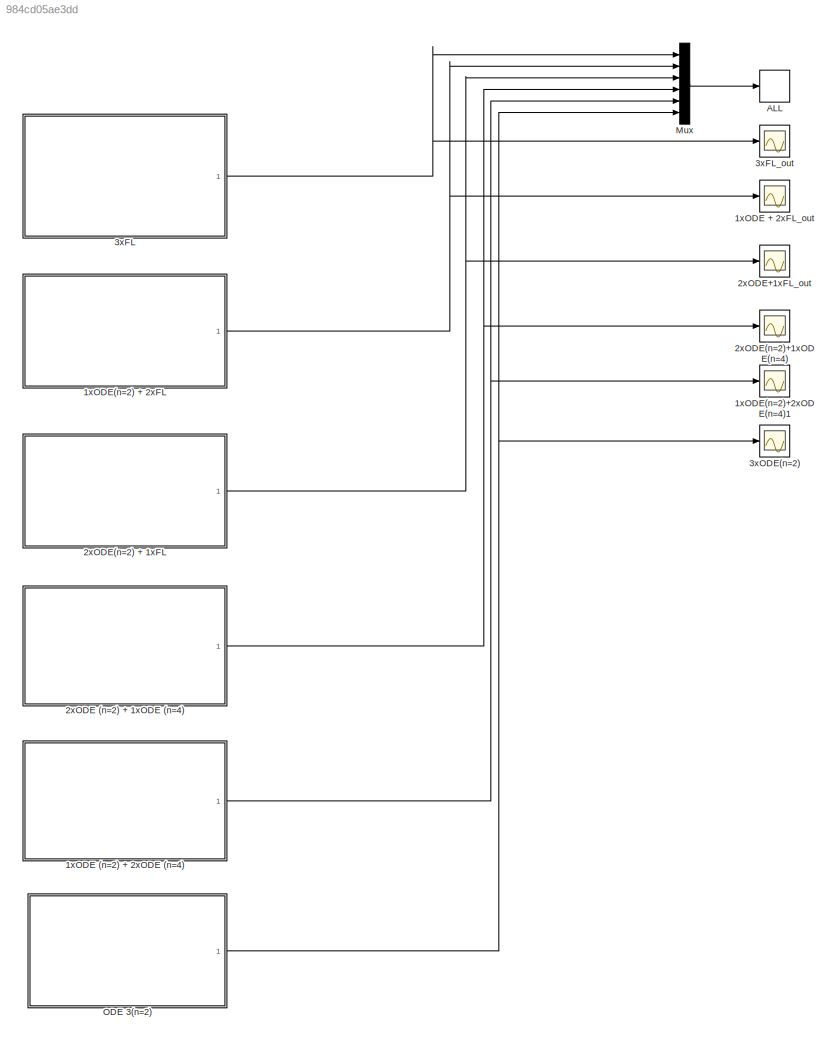
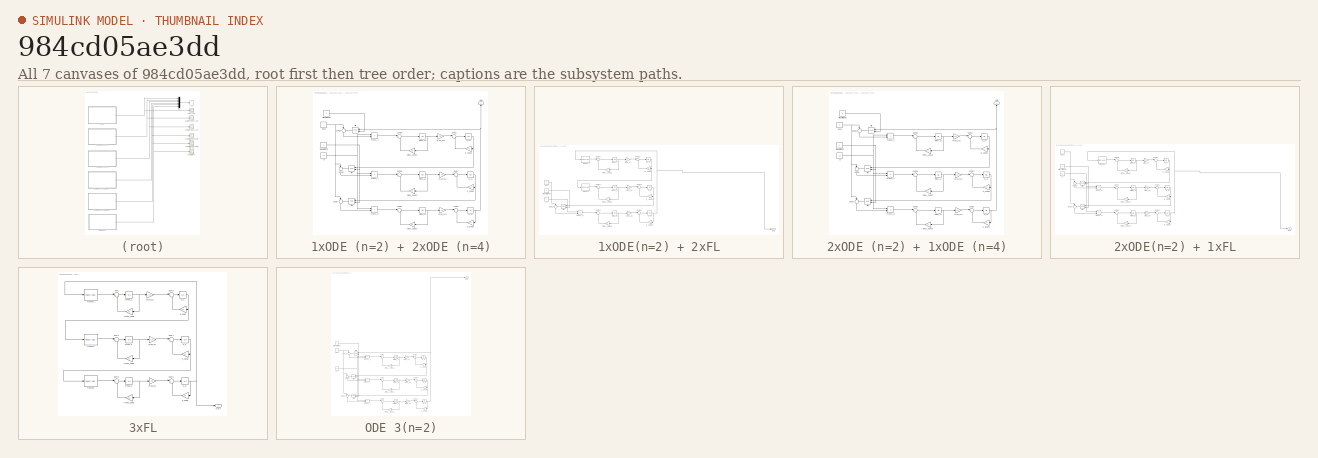
[diagram: thumbnail index - all 7 canvases of the model, root first then tree order]
MODEL slx_984cd05ae3dd
KIND model
CONFIG AbsTol = auto
CONFIG FixedStep = 0.1
CONFIG MaxStep = auto
CONFIG MinStep = auto
CONFIG RelTol = 1e-3
CONFIG SampleTimeConstraint = Unconstrained
CONFIG Solver = ode4
CONFIG SolverMode = Auto
CONFIG SolverName = ode4
CONFIG StartTime = 0.0
CONFIG StopTime = 1500
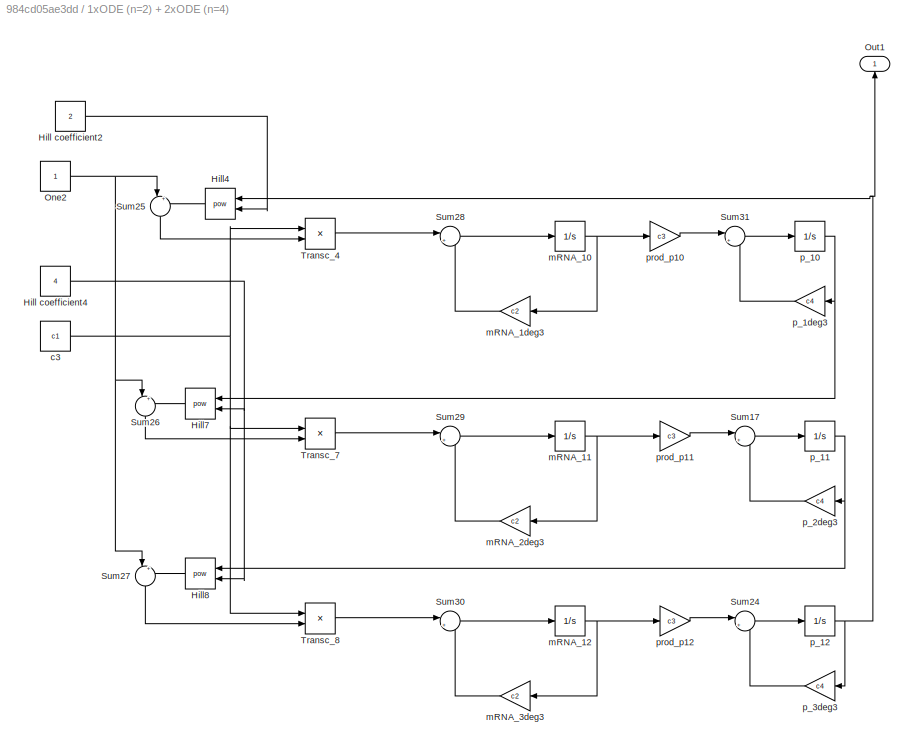
BLOCK [SubSystem] 1xODE (n=2) + 2xODE (n=4)
  Ports = [0, 1]
  RequestExecContextInheritance = off
BLOCK [Constant] 1xODE (n=2) + 2xODE (n=4)/Hill coefficient2
  Value = 2
BLOCK [Constant] 1xODE (n=2) + 2xODE (n=4)/Hill coefficient4
  Value = 4
BLOCK [Math] 1xODE (n=2) + 2xODE (n=4)/Hill4
  Operator = pow
  Ports = [2, 1]
BLOCK [Math] 1xODE (n=2) + 2xODE (n=4)/Hill7
  Operator = pow
  Ports = [2, 1]
BLOCK [Math] 1xODE (n=2) + 2xODE (n=4)/Hill8
  Operator = pow
  Ports = [2, 1]
BLOCK [Constant] 1xODE (n=2) + 2xODE (n=4)/One2
BLOCK [Outport] 1xODE (n=2) + 2xODE (n=4)/Out1
  IconDisplay = Port number
BLOCK [Sum] 1xODE (n=2) + 2xODE (n=4)/Sum17
  IconShape = round
  InputSameDT = off
  Inputs = |+-
  OutDataTypeStr = Inherit: Inherit via internal rule
  Ports = [2, 1]
  SaturateOnIntegerOverflow = off
BLOCK [Sum] 1xODE (n=2) + 2xODE (n=4)/Sum24
  IconShape = round
  InputSameDT = off
  Inputs = |+-
  OutDataTypeStr = Inherit: Inherit via internal rule
  Ports = [2, 1]
  SaturateOnIntegerOverflow = off
BLOCK [Sum] 1xODE (n=2) + 2xODE (n=4)/Sum25
  IconShape = round
  InputSameDT = off
  Inputs = |++
  OutDataTypeStr = Inherit: Inherit via internal rule
  Ports = [2, 1]
  SaturateOnIntegerOverflow = off
BLOCK [Sum] 1xODE (n=2) + 2xODE (n=4)/Sum26
  IconShape = round
  InputSameDT = off
  Inputs = |++
  OutDataTypeStr = Inherit: Inherit via internal rule
  Ports = [2, 1]
  SaturateOnIntegerOverflow = off
BLOCK [Sum] 1xODE (n=2) + 2xODE (n=4)/Sum27
  IconShape = round
  InputSameDT = off
  Inputs = |++
  OutDataTypeStr = Inherit: Inherit via internal rule
  Ports = [2, 1]
  SaturateOnIntegerOverflow = off
BLOCK [Sum] 1xODE (n=2) + 2xODE (n=4)/Sum28
  IconShape = round
  InputSameDT = off
  Inputs = |+-
  OutDataTypeStr = Inherit: Inherit via internal rule
  Ports = [2, 1]
  SaturateOnIntegerOverflow = off
BLOCK [Sum] 1xODE (n=2) + 2xODE (n=4)/Sum29
  IconShape = round
  InputSameDT = off
  Inputs = |+-
  OutDataTypeStr = Inherit: Inherit via internal rule
  Ports = [2, 1]
  SaturateOnIntegerOverflow = off
BLOCK [Sum] 1xODE (n=2) + 2xODE (n=4)/Sum30
  IconShape = round
  InputSameDT = off
  Inputs = |+-
  OutDataTypeStr = Inherit: Inherit via internal rule
  Ports = [2, 1]
  SaturateOnIntegerOverflow = off
BLOCK [Sum] 1xODE (n=2) + 2xODE (n=4)/Sum31
  IconShape = round
  InputSameDT = off
  Inputs = |+-
  OutDataTypeStr = Inherit: Inherit via internal rule
  Ports = [2, 1]
  SaturateOnIntegerOverflow = off
BLOCK [Product] 1xODE (n=2) + 2xODE (n=4)/Transc_4
  InputSameDT = off
  Inputs = */
  OutDataTypeStr = Inherit: Inherit via internal rule
  Ports = [2, 1]
  RndMeth = Floor
  SaturateOnIntegerOverflow = off
BLOCK [Product] 1xODE (n=2) + 2xODE (n=4)/Transc_7
  InputSameDT = off
  Inputs = */
  OutDataTypeStr = Inherit: Inherit via internal rule
  Ports = [2, 1]
  RndMeth = Floor
  SaturateOnIntegerOverflow = off
BLOCK [Product] 1xODE (n=2) + 2xODE (n=4)/Transc_8
  InputSameDT = off
  Inputs = */
  OutDataTypeStr = Inherit: Inherit via internal rule
  Ports = [2, 1]
  RndMeth = Floor
  SaturateOnIntegerOverflow = off
BLOCK [Constant] 1xODE (n=2) + 2xODE (n=4)/c3
  Value = c1
BLOCK [Integrator] 1xODE (n=2) + 2xODE (n=4)/mRNA_10
  InitialCondition = mRNA_init + 0.5
  Ports = [1, 1]
BLOCK [Integrator] 1xODE (n=2) + 2xODE (n=4)/mRNA_11
  InitialCondition = mRNA_init
  Ports = [1, 1]
BLOCK [Integrator] 1xODE (n=2) + 2xODE (n=4)/mRNA_12
  InitialCondition = mRNA_init
  Ports = [1, 1]
BLOCK [Gain] 1xODE (n=2) + 2xODE (n=4)/mRNA_1deg3
  Gain = c2
  OutDataTypeStr = Inherit: Inherit via internal rule
  ParamDataTypeStr = Inherit: Inherit via internal rule
  SaturateOnIntegerOverflow = off
BLOCK [Gain] 1xODE (n=2) + 2xODE (n=4)/mRNA_2deg3
  Gain = c2
  OutDataTypeStr = Inherit: Inherit via internal rule
  ParamDataTypeStr = Inherit: Inherit via internal rule
  SaturateOnIntegerOverflow = off
BLOCK [Gain] 1xODE (n=2) + 2xODE (n=4)/mRNA_3deg3
  Gain = c2
  OutDataTypeStr = Inherit: Inherit via internal rule
  ParamDataTypeStr = Inherit: Inherit via internal rule
  SaturateOnIntegerOverflow = off
BLOCK [Integrator] 1xODE (n=2) + 2xODE (n=4)/p_10
  Ports = [1, 1]
BLOCK [Integrator] 1xODE (n=2) + 2xODE (n=4)/p_11
  Ports = [1, 1]
BLOCK [Integrator] 1xODE (n=2) + 2xODE (n=4)/p_12
  Ports = [1, 1]
BLOCK [Gain] 1xODE (n=2) + 2xODE (n=4)/p_1deg3
  Gain = c4
  OutDataTypeStr = Inherit: Inherit via internal rule
  ParamDataTypeStr = Inherit: Inherit via internal rule
  SaturateOnIntegerOverflow = off
BLOCK [Gain] 1xODE (n=2) + 2xODE (n=4)/p_2deg3
  Gain = c4
  OutDataTypeStr = Inherit: Inherit via internal rule
  ParamDataTypeStr = Inherit: Inherit via internal rule
  SaturateOnIntegerOverflow = off
BLOCK [Gain] 1xODE (n=2) + 2xODE (n=4)/p_3deg3
  Gain = c4
  OutDataTypeStr = Inherit: Inherit via internal rule
  ParamDataTypeStr = Inherit: Inherit via internal rule
  SaturateOnIntegerOverflow = off
BLOCK [Gain] 1xODE (n=2) + 2xODE (n=4)/prod_p10
  Gain = c3
  OutDataTypeStr = Inherit: Inherit via internal rule
  ParamDataTypeStr = Inherit: Inherit via internal rule
  SaturateOnIntegerOverflow = off
BLOCK [Gain] 1xODE (n=2) + 2xODE (n=4)/prod_p11
  Gain = c3
  OutDataTypeStr = Inherit: Inherit via internal rule
  ParamDataTypeStr = Inherit: Inherit via internal rule
  SaturateOnIntegerOverflow = off
BLOCK [Gain] 1xODE (n=2) + 2xODE (n=4)/prod_p12
  Gain = c3
  OutDataTypeStr = Inherit: Inherit via internal rule
  ParamDataTypeStr = Inherit: Inherit via internal rule
  SaturateOnIntegerOverflow = off
BLOCK [Scope] 1xODE + 2xFL_out
  Floating = off
  LimitDataPoints = off
  NumInputPorts = 1
  Ports = [1]
  SampleTime = 0
  SaveName = P_out_FL5
  SaveToWorkspace = on
  TimeRange = 1500
  YMax = 450
  YMin = 0
  ZoomMode = xonly
BLOCK [SubSystem] 1xODE(n=2) + 2xFL
  Ports = [0, 1]
  RequestExecContextInheritance = off
BLOCK [Constant] 1xODE(n=2) + 2xFL/Hill coefficient3
  Value = 2
BLOCK [Math] 1xODE(n=2) + 2xFL/Hill6
  Operator = pow
  Ports = [2, 1]
BLOCK [Constant] 1xODE(n=2) + 2xFL/One1
BLOCK [Outport] 1xODE(n=2) + 2xFL/Out1
  IconDisplay = Port number
BLOCK [Sum] 1xODE(n=2) + 2xFL/Sum15
  IconShape = round
  InputSameDT = off
  Inputs = |+-
  OutDataTypeStr = Inherit: Inherit via internal rule
  Ports = [2, 1]
  SaturateOnIntegerOverflow = off
BLOCK [Sum] 1xODE(n=2) + 2xFL/Sum16
  IconShape = round
  InputSameDT = off
  Inputs = |+-
  OutDataTypeStr = Inherit: Inherit via internal rule
  Ports = [2, 1]
  SaturateOnIntegerOverflow = off
BLOCK [Sum] 1xODE(n=2) + 2xFL/Sum19
  IconShape = round
  InputSameDT = off
  Inputs = |++
  OutDataTypeStr = Inherit: Inherit via internal rule
  Ports = [2, 1]
  SaturateOnIntegerOverflow = off
BLOCK [Sum] 1xODE(n=2) + 2xFL/Sum20
  IconShape = round
  InputSameDT = off
  Inputs = |+-
  OutDataTypeStr = Inherit: Inherit via internal rule
  Ports = [2, 1]
  SaturateOnIntegerOverflow = off
BLOCK [Sum] 1xODE(n=2) + 2xFL/Sum21
  IconShape = round
  InputSameDT = off
  Inputs = |+-
  OutDataTypeStr = Inherit: Inherit via internal rule
  Ports = [2, 1]
  SaturateOnIntegerOverflow = off
BLOCK [Sum] 1xODE(n=2) + 2xFL/Sum22
  IconShape = round
  InputSameDT = off
  Inputs = |+-
  OutDataTypeStr = Inherit: Inherit via internal rule
  Ports = [2, 1]
  SaturateOnIntegerOverflow = off
BLOCK [Sum] 1xODE(n=2) + 2xFL/Sum23
  IconShape = round
  InputSameDT = off
  Inputs = |+-
  OutDataTypeStr = Inherit: Inherit via internal rule
  Ports = [2, 1]
  SaturateOnIntegerOverflow = off
BLOCK [Product] 1xODE(n=2) + 2xFL/Transc_6
  InputSameDT = off
  Inputs = */
  OutDataTypeStr = Inherit: Inherit via internal rule
  Ports = [2, 1]
  RndMeth = Floor
  SaturateOnIntegerOverflow = off
BLOCK [Reference] 1xODE(n=2) + 2xFL/Transk1  REF=fuzblock/Fuzzy Logic   (lib defined in mdl_858b3b3e7478)
Controller
  Ports = [1, 1]
  SourceBlock = fuzblock/Fuzzy Logic \nController
  SourceType = FIS
  fis = Transk1
BLOCK [Reference] 1xODE(n=2) + 2xFL/Transk4  REF=fuzblock/Fuzzy Logic   (lib defined in mdl_858b3b3e7478)
Controller
  Ports = [1, 1]
  SourceBlock = fuzblock/Fuzzy Logic \nController
  SourceType = FIS
  fis = Transk1
BLOCK [Constant] 1xODE(n=2) + 2xFL/c2
  Value = c1
BLOCK [Gain] 1xODE(n=2) + 2xFL/mRNA_1deg2
  Gain = c2
  OutDataTypeStr = Inherit: Inherit via internal rule
  ParamDataTypeStr = Inherit: Inherit via internal rule
  SaturateOnIntegerOverflow = off
BLOCK [Gain] 1xODE(n=2) + 2xFL/mRNA_2deg2
  Gain = c2
  OutDataTypeStr = Inherit: Inherit via internal rule
  ParamDataTypeStr = Inherit: Inherit via internal rule
  SaturateOnIntegerOverflow = off
BLOCK [Gain] 1xODE(n=2) + 2xFL/mRNA_3deg2
  Gain = c2
  OutDataTypeStr = Inherit: Inherit via internal rule
  ParamDataTypeStr = Inherit: Inherit via internal rule
  SaturateOnIntegerOverflow = off
BLOCK [Integrator] 1xODE(n=2) + 2xFL/mRNA_7
  InitialCondition = mRNA_init + 0.5
  Ports = [1, 1]
BLOCK [Integrator] 1xODE(n=2) + 2xFL/mRNA_8
  InitialCondition = mRNA_init
  Ports = [1, 1]
BLOCK [Integrator] 1xODE(n=2) + 2xFL/mRNA_9
  InitialCondition = mRNA_init
  Ports = [1, 1]
BLOCK [Gain] 1xODE(n=2) + 2xFL/p_1deg2
  Gain = c4
  OutDataTypeStr = Inherit: Inherit via internal rule
  ParamDataTypeStr = Inherit: Inherit via internal rule
  SaturateOnIntegerOverflow = off
BLOCK [Gain] 1xODE(n=2) + 2xFL/p_2deg2
  Gain = c4
  OutDataTypeStr = Inherit: Inherit via internal rule
  ParamDataTypeStr = Inherit: Inherit via internal rule
  SaturateOnIntegerOverflow = off
BLOCK [Gain] 1xODE(n=2) + 2xFL/p_3deg2
  Gain = c4
  OutDataTypeStr = Inherit: Inherit via internal rule
  ParamDataTypeStr = Inherit: Inherit via internal rule
  SaturateOnIntegerOverflow = off
BLOCK [Integrator] 1xODE(n=2) + 2xFL/p_7
  Ports = [1, 1]
BLOCK [Integrator] 1xODE(n=2) + 2xFL/p_8
  Ports = [1, 1]
BLOCK [Integrator] 1xODE(n=2) + 2xFL/p_9
  Ports = [1, 1]
BLOCK [Gain] 1xODE(n=2) + 2xFL/prod_p7
  Gain = c3
  OutDataTypeStr = Inherit: Inherit via internal rule
  ParamDataTypeStr = Inherit: Inherit via internal rule
  SaturateOnIntegerOverflow = off
BLOCK [Gain] 1xODE(n=2) + 2xFL/prod_p8
  Gain = c3
  OutDataTypeStr = Inherit: Inherit via internal rule
  ParamDataTypeStr = Inherit: Inherit via internal rule
  SaturateOnIntegerOverflow = off
BLOCK [Gain] 1xODE(n=2) + 2xFL/prod_p9
  Gain = c3
  OutDataTypeStr = Inherit: Inherit via internal rule
  ParamDataTypeStr = Inherit: Inherit via internal rule
  SaturateOnIntegerOverflow = off
BLOCK [Scope] 1xODE(n=2)+2xODE(n=4)1
  Floating = off
  LimitDataPoints = off
  NumInputPorts = 1
  Ports = [1]
  SampleTime = 0
  SaveName = P_out_FL6
  SaveToWorkspace = on
  TimeRange = 1500
  YMax = 600
  YMin = 0
  ZoomMode = xonly
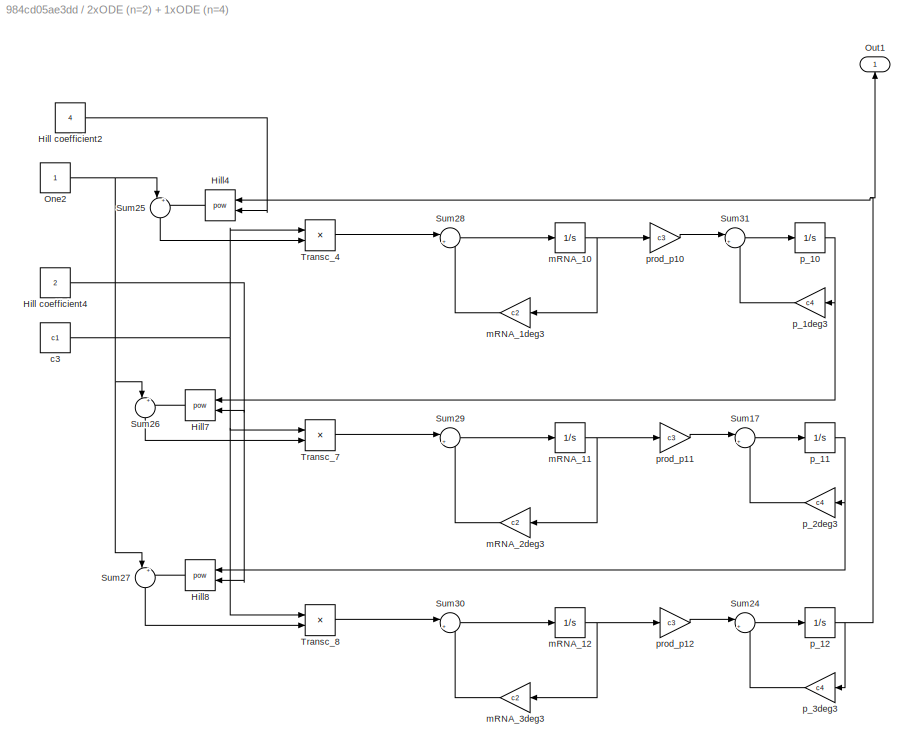
BLOCK [SubSystem] 2xODE (n=2) + 1xODE (n=4)
  Ports = [0, 1]
  RequestExecContextInheritance = off
BLOCK [Constant] 2xODE (n=2) + 1xODE (n=4)/Hill coefficient2
  Value = 4
BLOCK [Constant] 2xODE (n=2) + 1xODE (n=4)/Hill coefficient4
  Value = 2
BLOCK [Math] 2xODE (n=2) + 1xODE (n=4)/Hill4
  Operator = pow
  Ports = [2, 1]
BLOCK [Math] 2xODE (n=2) + 1xODE (n=4)/Hill7
  Operator = pow
  Ports = [2, 1]
BLOCK [Math] 2xODE (n=2) + 1xODE (n=4)/Hill8
  Operator = pow
  Ports = [2, 1]
BLOCK [Constant] 2xODE (n=2) + 1xODE (n=4)/One2
BLOCK [Outport] 2xODE (n=2) + 1xODE (n=4)/Out1
  IconDisplay = Port number
BLOCK [Sum] 2xODE (n=2) + 1xODE (n=4)/Sum17
  IconShape = round
  InputSameDT = off
  Inputs = |+-
  OutDataTypeStr = Inherit: Inherit via internal rule
  Ports = [2, 1]
  SaturateOnIntegerOverflow = off
BLOCK [Sum] 2xODE (n=2) + 1xODE (n=4)/Sum24
  IconShape = round
  InputSameDT = off
  Inputs = |+-
  OutDataTypeStr = Inherit: Inherit via internal rule
  Ports = [2, 1]
  SaturateOnIntegerOverflow = off
BLOCK [Sum] 2xODE (n=2) + 1xODE (n=4)/Sum25
  IconShape = round
  InputSameDT = off
  Inputs = |++
  OutDataTypeStr = Inherit: Inherit via internal rule
  Ports = [2, 1]
  SaturateOnIntegerOverflow = off
BLOCK [Sum] 2xODE (n=2) + 1xODE (n=4)/Sum26
  IconShape = round
  InputSameDT = off
  Inputs = |++
  OutDataTypeStr = Inherit: Inherit via internal rule
  Ports = [2, 1]
  SaturateOnIntegerOverflow = off
BLOCK [Sum] 2xODE (n=2) + 1xODE (n=4)/Sum27
  IconShape = round
  InputSameDT = off
  Inputs = |++
  OutDataTypeStr = Inherit: Inherit via internal rule
  Ports = [2, 1]
  SaturateOnIntegerOverflow = off
BLOCK [Sum] 2xODE (n=2) + 1xODE (n=4)/Sum28
  IconShape = round
  InputSameDT = off
  Inputs = |+-
  OutDataTypeStr = Inherit: Inherit via internal rule
  Ports = [2, 1]
  SaturateOnIntegerOverflow = off
BLOCK [Sum] 2xODE (n=2) + 1xODE (n=4)/Sum29
  IconShape = round
  InputSameDT = off
  Inputs = |+-
  OutDataTypeStr = Inherit: Inherit via internal rule
  Ports = [2, 1]
  SaturateOnIntegerOverflow = off
BLOCK [Sum] 2xODE (n=2) + 1xODE (n=4)/Sum30
  IconShape = round
  InputSameDT = off
  Inputs = |+-
  OutDataTypeStr = Inherit: Inherit via internal rule
  Ports = [2, 1]
  SaturateOnIntegerOverflow = off
BLOCK [Sum] 2xODE (n=2) + 1xODE (n=4)/Sum31
  IconShape = round
  InputSameDT = off
  Inputs = |+-
  OutDataTypeStr = Inherit: Inherit via internal rule
  Ports = [2, 1]
  SaturateOnIntegerOverflow = off
BLOCK [Product] 2xODE (n=2) + 1xODE (n=4)/Transc_4
  InputSameDT = off
  Inputs = */
  OutDataTypeStr = Inherit: Inherit via internal rule
  Ports = [2, 1]
  RndMeth = Floor
  SaturateOnIntegerOverflow = off
BLOCK [Product] 2xODE (n=2) + 1xODE (n=4)/Transc_7
  InputSameDT = off
  Inputs = */
  OutDataTypeStr = Inherit: Inherit via internal rule
  Ports = [2, 1]
  RndMeth = Floor
  SaturateOnIntegerOverflow = off
BLOCK [Product] 2xODE (n=2) + 1xODE (n=4)/Transc_8
  InputSameDT = off
  Inputs = */
  OutDataTypeStr = Inherit: Inherit via internal rule
  Ports = [2, 1]
  RndMeth = Floor
  SaturateOnIntegerOverflow = off
BLOCK [Constant] 2xODE (n=2) + 1xODE (n=4)/c3
  Value = c1
BLOCK [Integrator] 2xODE (n=2) + 1xODE (n=4)/mRNA_10
  InitialCondition = mRNA_init + 0.5
  Ports = [1, 1]
BLOCK [Integrator] 2xODE (n=2) + 1xODE (n=4)/mRNA_11
  InitialCondition = mRNA_init
  Ports = [1, 1]
BLOCK [Integrator] 2xODE (n=2) + 1xODE (n=4)/mRNA_12
  InitialCondition = mRNA_init
  Ports = [1, 1]
BLOCK [Gain] 2xODE (n=2) + 1xODE (n=4)/mRNA_1deg3
  Gain = c2
  OutDataTypeStr = Inherit: Inherit via internal rule
  ParamDataTypeStr = Inherit: Inherit via internal rule
  SaturateOnIntegerOverflow = off
BLOCK [Gain] 2xODE (n=2) + 1xODE (n=4)/mRNA_2deg3
  Gain = c2
  OutDataTypeStr = Inherit: Inherit via internal rule
  ParamDataTypeStr = Inherit: Inherit via internal rule
  SaturateOnIntegerOverflow = off
BLOCK [Gain] 2xODE (n=2) + 1xODE (n=4)/mRNA_3deg3
  Gain = c2
  OutDataTypeStr = Inherit: Inherit via internal rule
  ParamDataTypeStr = Inherit: Inherit via internal rule
  SaturateOnIntegerOverflow = off
BLOCK [Integrator] 2xODE (n=2) + 1xODE (n=4)/p_10
  Ports = [1, 1]
BLOCK [Integrator] 2xODE (n=2) + 1xODE (n=4)/p_11
  Ports = [1, 1]
BLOCK [Integrator] 2xODE (n=2) + 1xODE (n=4)/p_12
  Ports = [1, 1]
BLOCK [Gain] 2xODE (n=2) + 1xODE (n=4)/p_1deg3
  Gain = c4
  OutDataTypeStr = Inherit: Inherit via internal rule
  ParamDataTypeStr = Inherit: Inherit via internal rule
  SaturateOnIntegerOverflow = off
BLOCK [Gain] 2xODE (n=2) + 1xODE (n=4)/p_2deg3
  Gain = c4
  OutDataTypeStr = Inherit: Inherit via internal rule
  ParamDataTypeStr = Inherit: Inherit via internal rule
  SaturateOnIntegerOverflow = off
BLOCK [Gain] 2xODE (n=2) + 1xODE (n=4)/p_3deg3
  Gain = c4
  OutDataTypeStr = Inherit: Inherit via internal rule
  ParamDataTypeStr = Inherit: Inherit via internal rule
  SaturateOnIntegerOverflow = off
BLOCK [Gain] 2xODE (n=2) + 1xODE (n=4)/prod_p10
  Gain = c3
  OutDataTypeStr = Inherit: Inherit via internal rule
  ParamDataTypeStr = Inherit: Inherit via internal rule
  SaturateOnIntegerOverflow = off
BLOCK [Gain] 2xODE (n=2) + 1xODE (n=4)/prod_p11
  Gain = c3
  OutDataTypeStr = Inherit: Inherit via internal rule
  ParamDataTypeStr = Inherit: Inherit via internal rule
  SaturateOnIntegerOverflow = off
BLOCK [Gain] 2xODE (n=2) + 1xODE (n=4)/prod_p12
  Gain = c3
  OutDataTypeStr = Inherit: Inherit via internal rule
  ParamDataTypeStr = Inherit: Inherit via internal rule
  SaturateOnIntegerOverflow = off
BLOCK [SubSystem] 2xODE(n=2) + 1xFL
  Ports = [0, 1]
  RequestExecContextInheritance = off
BLOCK [Constant] 2xODE(n=2) + 1xFL/Hill coefficient3
  Value = 2
BLOCK [Math] 2xODE(n=2) + 1xFL/Hill5
  Operator = pow
  Ports = [2, 1]
BLOCK [Math] 2xODE(n=2) + 1xFL/Hill6
  Operator = pow
  Ports = [2, 1]
BLOCK [Constant] 2xODE(n=2) + 1xFL/One1
BLOCK [Outport] 2xODE(n=2) + 1xFL/Out1
  IconDisplay = Port number
BLOCK [Sum] 2xODE(n=2) + 1xFL/Sum15
  IconShape = round
  InputSameDT = off
  Inputs = |+-
  OutDataTypeStr = Inherit: Inherit via internal rule
  Ports = [2, 1]
  SaturateOnIntegerOverflow = off
BLOCK [Sum] 2xODE(n=2) + 1xFL/Sum16
  IconShape = round
  InputSameDT = off
  Inputs = |+-
  OutDataTypeStr = Inherit: Inherit via internal rule
  Ports = [2, 1]
  SaturateOnIntegerOverflow = off
BLOCK [Sum] 2xODE(n=2) + 1xFL/Sum18
  IconShape = round
  InputSameDT = off
  Inputs = |++
  OutDataTypeStr = Inherit: Inherit via internal rule
  Ports = [2, 1]
  SaturateOnIntegerOverflow = off
BLOCK [Sum] 2xODE(n=2) + 1xFL/Sum19
  IconShape = round
  InputSameDT = off
  Inputs = |++
  OutDataTypeStr = Inherit: Inherit via internal rule
  Ports = [2, 1]
  SaturateOnIntegerOverflow = off
BLOCK [Sum] 2xODE(n=2) + 1xFL/Sum20
  IconShape = round
  InputSameDT = off
  Inputs = |+-
  OutDataTypeStr = Inherit: Inherit via internal rule
  Ports = [2, 1]
  SaturateOnIntegerOverflow = off
BLOCK [Sum] 2xODE(n=2) + 1xFL/Sum21
  IconShape = round
  InputSameDT = off
  Inputs = |+-
  OutDataTypeStr = Inherit: Inherit via internal rule
  Ports = [2, 1]
  SaturateOnIntegerOverflow = off
BLOCK [Sum] 2xODE(n=2) + 1xFL/Sum22
  IconShape = round
  InputSameDT = off
  Inputs = |+-
  OutDataTypeStr = Inherit: Inherit via internal rule
  Ports = [2, 1]
  SaturateOnIntegerOverflow = off
BLOCK [Sum] 2xODE(n=2) + 1xFL/Sum23
  IconShape = round
  InputSameDT = off
  Inputs = |+-
  OutDataTypeStr = Inherit: Inherit via internal rule
  Ports = [2, 1]
  SaturateOnIntegerOverflow = off
BLOCK [Product] 2xODE(n=2) + 1xFL/Transc_5
  InputSameDT = off
  Inputs = */
  OutDataTypeStr = Inherit: Inherit via internal rule
  Ports = [2, 1]
  RndMeth = Floor
  SaturateOnIntegerOverflow = off
BLOCK [Product] 2xODE(n=2) + 1xFL/Transc_6
  InputSameDT = off
  Inputs = */
  OutDataTypeStr = Inherit: Inherit via internal rule
  Ports = [2, 1]
  RndMeth = Floor
  SaturateOnIntegerOverflow = off
BLOCK [Reference] 2xODE(n=2) + 1xFL/Transk4  REF=fuzblock/Fuzzy Logic   (lib defined in mdl_858b3b3e7478)
Controller
  Ports = [1, 1]
  SourceBlock = fuzblock/Fuzzy Logic \nController
  SourceType = FIS
  fis = Transk1
BLOCK [Constant] 2xODE(n=2) + 1xFL/c2
  Value = c1
BLOCK [Gain] 2xODE(n=2) + 1xFL/mRNA_1deg2
  Gain = c2
  OutDataTypeStr = Inherit: Inherit via internal rule
  ParamDataTypeStr = Inherit: Inherit via internal rule
  SaturateOnIntegerOverflow = off
BLOCK [Gain] 2xODE(n=2) + 1xFL/mRNA_2deg2
  Gain = c2
  OutDataTypeStr = Inherit: Inherit via internal rule
  ParamDataTypeStr = Inherit: Inherit via internal rule
  SaturateOnIntegerOverflow = off
BLOCK [Gain] 2xODE(n=2) + 1xFL/mRNA_3deg2
  Gain = c2
  OutDataTypeStr = Inherit: Inherit via internal rule
  ParamDataTypeStr = Inherit: Inherit via internal rule
  SaturateOnIntegerOverflow = off
BLOCK [Integrator] 2xODE(n=2) + 1xFL/mRNA_7
  InitialCondition = mRNA_init + 0.5
  Ports = [1, 1]
BLOCK [Integrator] 2xODE(n=2) + 1xFL/mRNA_8
  InitialCondition = mRNA_init
  Ports = [1, 1]
BLOCK [Integrator] 2xODE(n=2) + 1xFL/mRNA_9
  InitialCondition = mRNA_init
  Ports = [1, 1]
BLOCK [Gain] 2xODE(n=2) + 1xFL/p_1deg2
  Gain = c4
  OutDataTypeStr = Inherit: Inherit via internal rule
  ParamDataTypeStr = Inherit: Inherit via internal rule
  SaturateOnIntegerOverflow = off
BLOCK [Gain] 2xODE(n=2) + 1xFL/p_2deg2
  Gain = c4
  OutDataTypeStr = Inherit: Inherit via internal rule
  ParamDataTypeStr = Inherit: Inherit via internal rule
  SaturateOnIntegerOverflow = off
BLOCK [Gain] 2xODE(n=2) + 1xFL/p_3deg2
  Gain = c4
  OutDataTypeStr = Inherit: Inherit via internal rule
  ParamDataTypeStr = Inherit: Inherit via internal rule
  SaturateOnIntegerOverflow = off
BLOCK [Integrator] 2xODE(n=2) + 1xFL/p_7
  Ports = [1, 1]
BLOCK [Integrator] 2xODE(n=2) + 1xFL/p_8
  Ports = [1, 1]
BLOCK [Integrator] 2xODE(n=2) + 1xFL/p_9
  Ports = [1, 1]
BLOCK [Gain] 2xODE(n=2) + 1xFL/prod_p7
  Gain = c3
  OutDataTypeStr = Inherit: Inherit via internal rule
  ParamDataTypeStr = Inherit: Inherit via internal rule
  SaturateOnIntegerOverflow = off
BLOCK [Gain] 2xODE(n=2) + 1xFL/prod_p8
  Gain = c3
  OutDataTypeStr = Inherit: Inherit via internal rule
  ParamDataTypeStr = Inherit: Inherit via internal rule
  SaturateOnIntegerOverflow = off
BLOCK [Gain] 2xODE(n=2) + 1xFL/prod_p9
  Gain = c3
  OutDataTypeStr = Inherit: Inherit via internal rule
  ParamDataTypeStr = Inherit: Inherit via internal rule
  SaturateOnIntegerOverflow = off
BLOCK [Scope] 2xODE(n=2)+1xODE(n=4)
  Floating = off
  LimitDataPoints = off
  NumInputPorts = 1
  Ports = [1]
  SampleTime = 0
  SaveName = P_out_FL2
  SaveToWorkspace = on
  TimeRange = 1500
  YMax = 600
  YMin = 0
  ZoomMode = xonly
BLOCK [Scope] 2xODE+1xFL_out
  Floating = off
  LimitDataPoints = off
  NumInputPorts = 1
  Ports = [1]
  SampleTime = 0
  SaveName = P_out_FL1
  SaveToWorkspace = on
  TimeRange = 1500
  YMax = 500
  YMin = 0
  ZoomMode = yonly
BLOCK [SubSystem] 3xFL
  Ports = [0, 1]
  RequestExecContextInheritance = off
BLOCK [Outport] 3xFL/Out1
  IconDisplay = Port number
BLOCK [Sum] 3xFL/Sum
  IconShape = round
  InputSameDT = off
  Inputs = |+-
  OutDataTypeStr = Inherit: Inherit via internal rule
  Ports = [2, 1]
  SaturateOnIntegerOverflow = off
BLOCK [Sum] 3xFL/Sum1
  IconShape = round
  InputSameDT = off
  Inputs = |+-
  OutDataTypeStr = Inherit: Inherit via internal rule
  Ports = [2, 1]
  SaturateOnIntegerOverflow = off
BLOCK [Sum] 3xFL/Sum2
  IconShape = round
  InputSameDT = off
  Inputs = |+-
  OutDataTypeStr = Inherit: Inherit via internal rule
  Ports = [2, 1]
  SaturateOnIntegerOverflow = off
BLOCK [Sum] 3xFL/Sum3
  IconShape = round
  InputSameDT = off
  Inputs = |+-
  OutDataTypeStr = Inherit: Inherit via internal rule
  Ports = [2, 1]
  SaturateOnIntegerOverflow = off
BLOCK [Sum] 3xFL/Sum4
  IconShape = round
  InputSameDT = off
  Inputs = |+-
  OutDataTypeStr = Inherit: Inherit via internal rule
  Ports = [2, 1]
  SaturateOnIntegerOverflow = off
BLOCK [Sum] 3xFL/Sum5
  IconShape = round
  InputSameDT = off
  Inputs = |+-
  OutDataTypeStr = Inherit: Inherit via internal rule
  Ports = [2, 1]
  SaturateOnIntegerOverflow = off
BLOCK [Reference] 3xFL/Transk1  REF=fuzblock/Fuzzy Logic   (lib defined in mdl_858b3b3e7478)
Controller
  Ports = [1, 1]
  SourceBlock = fuzblock/Fuzzy Logic \nController
  SourceType = FIS
  fis = Transk
BLOCK [Reference] 3xFL/Transk2  REF=fuzblock/Fuzzy Logic   (lib defined in mdl_858b3b3e7478)
Controller
  Ports = [1, 1]
  SourceBlock = fuzblock/Fuzzy Logic \nController
  SourceType = FIS
  fis = Transk
BLOCK [Reference] 3xFL/Transk3  REF=fuzblock/Fuzzy Logic   (lib defined in mdl_858b3b3e7478)
Controller
  Ports = [1, 1]
  SourceBlock = fuzblock/Fuzzy Logic \nController
  SourceType = FIS
  fis = Transk
BLOCK [Integrator] 3xFL/mRNA_1
  InitialCondition = mRNA_init + 0.5
  LimitOutput = on
  LowerSaturationLimit = 0
  Ports = [1, 1]
BLOCK [Gain] 3xFL/mRNA_1deg
  Gain = c2
  OutDataTypeStr = Inherit: Inherit via internal rule
  ParamDataTypeStr = Inherit: Inherit via internal rule
  SaturateOnIntegerOverflow = off
BLOCK [Integrator] 3xFL/mRNA_2
  InitialCondition = mRNA_init
  LimitOutput = on
  LowerSaturationLimit = 0
  Ports = [1, 1]
BLOCK [Gain] 3xFL/mRNA_2deg
  Gain = c2
  OutDataTypeStr = Inherit: Inherit via internal rule
  ParamDataTypeStr = Inherit: Inherit via internal rule
  SaturateOnIntegerOverflow = off
BLOCK [Integrator] 3xFL/mRNA_3
  InitialCondition = mRNA_init
  LimitOutput = on
  LowerSaturationLimit = 0
  Ports = [1, 1]
BLOCK [Gain] 3xFL/mRNA_3deg
  Gain = c2
  OutDataTypeStr = Inherit: Inherit via internal rule
  ParamDataTypeStr = Inherit: Inherit via internal rule
  SaturateOnIntegerOverflow = off
BLOCK [Integrator] 3xFL/p_1
  LimitOutput = on
  LowerSaturationLimit = 0
  Ports = [1, 1]
BLOCK [Gain] 3xFL/p_1deg
  Gain = c4
  OutDataTypeStr = Inherit: Inherit via internal rule
  ParamDataTypeStr = Inherit: Inherit via internal rule
  SaturateOnIntegerOverflow = off
BLOCK [Integrator] 3xFL/p_2
  LimitOutput = on
  LowerSaturationLimit = 0
  Ports = [1, 1]
BLOCK [Gain] 3xFL/p_2deg
  Gain = c4
  OutDataTypeStr = Inherit: Inherit via internal rule
  ParamDataTypeStr = Inherit: Inherit via internal rule
  SaturateOnIntegerOverflow = off
BLOCK [Integrator] 3xFL/p_3
  LimitOutput = on
  LowerSaturationLimit = 0
  Ports = [1, 1]
BLOCK [Gain] 3xFL/p_3deg
  Gain = c4
  OutDataTypeStr = Inherit: Inherit via internal rule
  ParamDataTypeStr = Inherit: Inherit via internal rule
  SaturateOnIntegerOverflow = off
BLOCK [Gain] 3xFL/prod_p1
  Gain = c3
  OutDataTypeStr = Inherit: Inherit via internal rule
  ParamDataTypeStr = Inherit: Inherit via internal rule
  SaturateOnIntegerOverflow = off
BLOCK [Gain] 3xFL/prod_p2
  Gain = c3
  OutDataTypeStr = Inherit: Inherit via internal rule
  ParamDataTypeStr = Inherit: Inherit via internal rule
  SaturateOnIntegerOverflow = off
BLOCK [Gain] 3xFL/prod_p3
  Gain = c3
  OutDataTypeStr = Inherit: Inherit via internal rule
  ParamDataTypeStr = Inherit: Inherit via internal rule
  SaturateOnIntegerOverflow = off
BLOCK [Scope] 3xFL_out
  Floating = off
  LimitDataPoints = off
  NumInputPorts = 1
  Ports = [1]
  SampleTime = 0
  SaveName = P_out_FL
  SaveToWorkspace = on
  TimeRange = 1500
  YMax = 450
  YMin = 0
  ZoomMode = xonly
BLOCK [Scope] 3xODE(n=2)
  Floating = off
  LimitDataPoints = off
  NumInputPorts = 1
  Ports = [1]
  SampleTime = 0
  SaveName = P_out_FL3
  SaveToWorkspace = on
  TimeRange = 1500
  YMax = 400
  YMin = 0
  ZoomMode = xonly
BLOCK [TimeScope] ALL
  NumInputPorts = 1
  Ports = [1]
  ScopeSpecificationString = Simulink.scopes.TimeScopeBlockCfg('CurrentConfiguration', extmgr.ConfigurationSet(extmgr.Configuration('Core','General UI',true),extmgr.Configuration('Core','Source UI',true),extmgr.Configuration('Sources','WiredSimulink',true,'DataLogging',true,'DataLoggingVariableName','P_out_FL4','DataLoggingDecimation','1','DataLoggingDecimateData',true,'DataLoggingSaveFormat','Array'),extmgr.Configuration('Vi...<+2131ch>
BLOCK [Mux] Mux
  DisplayOption = bar
  Inputs = 6
  Ports = [6, 1]
BLOCK [SubSystem] ODE 3(n=2)
  Ports = [0, 1]
  RequestExecContextInheritance = off
BLOCK [Constant] ODE 3(n=2)/Hill coefficient
  Value = 2
BLOCK [Math] ODE 3(n=2)/Hill1
  Operator = pow
  Ports = [2, 1]
BLOCK [Math] ODE 3(n=2)/Hill2
  Operator = pow
  Ports = [2, 1]
BLOCK [Math] ODE 3(n=2)/Hill3
  Operator = pow
  Ports = [2, 1]
BLOCK [Constant] ODE 3(n=2)/One
BLOCK [Outport] ODE 3(n=2)/Out1
  IconDisplay = Port number
BLOCK [Sum] ODE 3(n=2)/Sum10
  IconShape = round
  InputSameDT = off
  Inputs = |+-
  OutDataTypeStr = Inherit: Inherit via internal rule
  Ports = [2, 1]
  SaturateOnIntegerOverflow = off
BLOCK [Sum] ODE 3(n=2)/Sum11
  IconShape = round
  InputSameDT = off
  Inputs = |+-
  OutDataTypeStr = Inherit: Inherit via internal rule
  Ports = [2, 1]
  SaturateOnIntegerOverflow = off
BLOCK [Sum] ODE 3(n=2)/Sum12
  IconShape = round
  InputSameDT = off
  Inputs = |++
  OutDataTypeStr = Inherit: Inherit via internal rule
  Ports = [2, 1]
  SaturateOnIntegerOverflow = off
BLOCK [Sum] ODE 3(n=2)/Sum13
  IconShape = round
  InputSameDT = off
  Inputs = |++
  OutDataTypeStr = Inherit: Inherit via internal rule
  Ports = [2, 1]
  SaturateOnIntegerOverflow = off
BLOCK [Sum] ODE 3(n=2)/Sum14
  IconShape = round
  InputSameDT = off
  Inputs = |++
  OutDataTypeStr = Inherit: Inherit via internal rule
  Ports = [2, 1]
  SaturateOnIntegerOverflow = off
BLOCK [Sum] ODE 3(n=2)/Sum6
  IconShape = round
  InputSameDT = off
  Inputs = |+-
  OutDataTypeStr = Inherit: Inherit via internal rule
  Ports = [2, 1]
  SaturateOnIntegerOverflow = off
BLOCK [Sum] ODE 3(n=2)/Sum7
  IconShape = round
  InputSameDT = off
  Inputs = |+-
  OutDataTypeStr = Inherit: Inherit via internal rule
  Ports = [2, 1]
  SaturateOnIntegerOverflow = off
BLOCK [Sum] ODE 3(n=2)/Sum8
  IconShape = round
  InputSameDT = off
  Inputs = |+-
  OutDataTypeStr = Inherit: Inherit via internal rule
  Ports = [2, 1]
  SaturateOnIntegerOverflow = off
BLOCK [Sum] ODE 3(n=2)/Sum9
  IconShape = round
  InputSameDT = off
  Inputs = |+-
  OutDataTypeStr = Inherit: Inherit via internal rule
  Ports = [2, 1]
  SaturateOnIntegerOverflow = off
BLOCK [Product] ODE 3(n=2)/Transc_1
  InputSameDT = off
  Inputs = */
  OutDataTypeStr = Inherit: Inherit via internal rule
  Ports = [2, 1]
  RndMeth = Floor
  SaturateOnIntegerOverflow = off
BLOCK [Product] ODE 3(n=2)/Transc_2
  InputSameDT = off
  Inputs = */
  OutDataTypeStr = Inherit: Inherit via internal rule
  Ports = [2, 1]
  RndMeth = Floor
  SaturateOnIntegerOverflow = off
BLOCK [Product] ODE 3(n=2)/Transc_3
  InputSameDT = off
  Inputs = */
  OutDataTypeStr = Inherit: Inherit via internal rule
  Ports = [2, 1]
  RndMeth = Floor
  SaturateOnIntegerOverflow = off
BLOCK [Constant] ODE 3(n=2)/c1
  Value = c1
BLOCK [Gain] ODE 3(n=2)/mRNA_1deg1
  Gain = c2
  OutDataTypeStr = Inherit: Inherit via internal rule
  ParamDataTypeStr = Inherit: Inherit via internal rule
  SaturateOnIntegerOverflow = off
BLOCK [Gain] ODE 3(n=2)/mRNA_2deg1
  Gain = c2
  OutDataTypeStr = Inherit: Inherit via internal rule
  ParamDataTypeStr = Inherit: Inherit via internal rule
  SaturateOnIntegerOverflow = off
BLOCK [Gain] ODE 3(n=2)/mRNA_3deg1
  Gain = c2
  OutDataTypeStr = Inherit: Inherit via internal rule
  ParamDataTypeStr = Inherit: Inherit via internal rule
  SaturateOnIntegerOverflow = off
BLOCK [Integrator] ODE 3(n=2)/mRNA_4
  InitialCondition = mRNA_init + 0.5
  Ports = [1, 1]
BLOCK [Integrator] ODE 3(n=2)/mRNA_5
  InitialCondition = mRNA_init
  Ports = [1, 1]
BLOCK [Integrator] ODE 3(n=2)/mRNA_6
  InitialCondition = mRNA_init
  Ports = [1, 1]
BLOCK [Gain] ODE 3(n=2)/p_1deg1
  Gain = c4
  OutDataTypeStr = Inherit: Inherit via internal rule
  ParamDataTypeStr = Inherit: Inherit via internal rule
  SaturateOnIntegerOverflow = off
BLOCK [Gain] ODE 3(n=2)/p_2deg1
  Gain = c4
  OutDataTypeStr = Inherit: Inherit via internal rule
  ParamDataTypeStr = Inherit: Inherit via internal rule
  SaturateOnIntegerOverflow = off
BLOCK [Gain] ODE 3(n=2)/p_3deg1
  Gain = c4
  OutDataTypeStr = Inherit: Inherit via internal rule
  ParamDataTypeStr = Inherit: Inherit via internal rule
  SaturateOnIntegerOverflow = off
BLOCK [Integrator] ODE 3(n=2)/p_4
  Ports = [1, 1]
BLOCK [Integrator] ODE 3(n=2)/p_5
  Ports = [1, 1]
BLOCK [Integrator] ODE 3(n=2)/p_6
  Ports = [1, 1]
BLOCK [Gain] ODE 3(n=2)/prod_p4
  Gain = c3
  OutDataTypeStr = Inherit: Inherit via internal rule
  ParamDataTypeStr = Inherit: Inherit via internal rule
  SaturateOnIntegerOverflow = off
BLOCK [Gain] ODE 3(n=2)/prod_p5
  Gain = c3
  OutDataTypeStr = Inherit: Inherit via internal rule
  ParamDataTypeStr = Inherit: Inherit via internal rule
  SaturateOnIntegerOverflow = off
BLOCK [Gain] ODE 3(n=2)/prod_p6
  Gain = c3
  OutDataTypeStr = Inherit: Inherit via internal rule
  ParamDataTypeStr = Inherit: Inherit via internal rule
  SaturateOnIntegerOverflow = off
LINE 1xODE (n=2) + 2xODE (n=4)/Hill coefficient2:1 -> 1xODE (n=2) + 2xODE (n=4)/Hill4:2
NET 1xODE (n=2) + 2xODE (n=4)/Hill coefficient4:1 -> 1xODE (n=2) + 2xODE (n=4)/Hill7:2, 1xODE (n=2) + 2xODE (n=4)/Hill8:2
LINE 1xODE (n=2) + 2xODE (n=4)/Hill4:1 -> 1xODE (n=2) + 2xODE (n=4)/Sum25:2
LINE 1xODE (n=2) + 2xODE (n=4)/Hill7:1 -> 1xODE (n=2) + 2xODE (n=4)/Sum26:2
LINE 1xODE (n=2) + 2xODE (n=4)/Hill8:1 -> 1xODE (n=2) + 2xODE (n=4)/Sum27:2
NET 1xODE (n=2) + 2xODE (n=4)/One2:1 -> 1xODE (n=2) + 2xODE (n=4)/Sum25:1, 1xODE (n=2) + 2xODE (n=4)/Sum26:1, 1xODE (n=2) + 2xODE (n=4)/Sum27:1
LINE 1xODE (n=2) + 2xODE (n=4)/Sum17:1 -> 1xODE (n=2) + 2xODE (n=4)/p_11:1
LINE 1xODE (n=2) + 2xODE (n=4)/Sum24:1 -> 1xODE (n=2) + 2xODE (n=4)/p_12:1
LINE 1xODE (n=2) + 2xODE (n=4)/Sum25:1 -> 1xODE (n=2) + 2xODE (n=4)/Transc_4:2
LINE 1xODE (n=2) + 2xODE (n=4)/Sum26:1 -> 1xODE (n=2) + 2xODE (n=4)/Transc_7:2
LINE 1xODE (n=2) + 2xODE (n=4)/Sum27:1 -> 1xODE (n=2) + 2xODE (n=4)/Transc_8:2
LINE 1xODE (n=2) + 2xODE (n=4)/Sum28:1 -> 1xODE (n=2) + 2xODE (n=4)/mRNA_10:1
LINE 1xODE (n=2) + 2xODE (n=4)/Sum29:1 -> 1xODE (n=2) + 2xODE (n=4)/mRNA_11:1
LINE 1xODE (n=2) + 2xODE (n=4)/Sum30:1 -> 1xODE (n=2) + 2xODE (n=4)/mRNA_12:1
LINE 1xODE (n=2) + 2xODE (n=4)/Sum31:1 -> 1xODE (n=2) + 2xODE (n=4)/p_10:1
LINE 1xODE (n=2) + 2xODE (n=4)/Transc_4:1 -> 1xODE (n=2) + 2xODE (n=4)/Sum28:1
LINE 1xODE (n=2) + 2xODE (n=4)/Transc_7:1 -> 1xODE (n=2) + 2xODE (n=4)/Sum29:1
LINE 1xODE (n=2) + 2xODE (n=4)/Transc_8:1 -> 1xODE (n=2) + 2xODE (n=4)/Sum30:1
NET 1xODE (n=2) + 2xODE (n=4)/c3:1 -> 1xODE (n=2) + 2xODE (n=4)/Transc_4:1, 1xODE (n=2) + 2xODE (n=4)/Transc_7:1, 1xODE (n=2) + 2xODE (n=4)/Transc_8:1
NET 1xODE (n=2) + 2xODE (n=4)/mRNA_10:1 -> 1xODE (n=2) + 2xODE (n=4)/mRNA_1deg3:1, 1xODE (n=2) + 2xODE (n=4)/prod_p10:1
NET 1xODE (n=2) + 2xODE (n=4)/mRNA_11:1 -> 1xODE (n=2) + 2xODE (n=4)/mRNA_2deg3:1, 1xODE (n=2) + 2xODE (n=4)/prod_p11:1
NET 1xODE (n=2) + 2xODE (n=4)/mRNA_12:1 -> 1xODE (n=2) + 2xODE (n=4)/mRNA_3deg3:1, 1xODE (n=2) + 2xODE (n=4)/prod_p12:1
LINE 1xODE (n=2) + 2xODE (n=4)/mRNA_1deg3:1 -> 1xODE (n=2) + 2xODE (n=4)/Sum28:2
LINE 1xODE (n=2) + 2xODE (n=4)/mRNA_2deg3:1 -> 1xODE (n=2) + 2xODE (n=4)/Sum29:2
LINE 1xODE (n=2) + 2xODE (n=4)/mRNA_3deg3:1 -> 1xODE (n=2) + 2xODE (n=4)/Sum30:2
NET 1xODE (n=2) + 2xODE (n=4)/p_10:1 -> 1xODE (n=2) + 2xODE (n=4)/Hill7:1, 1xODE (n=2) + 2xODE (n=4)/p_1deg3:1
NET 1xODE (n=2) + 2xODE (n=4)/p_11:1 -> 1xODE (n=2) + 2xODE (n=4)/Hill8:1, 1xODE (n=2) + 2xODE (n=4)/p_2deg3:1
NET 1xODE (n=2) + 2xODE (n=4)/p_12:1 -> 1xODE (n=2) + 2xODE (n=4)/Hill4:1, 1xODE (n=2) + 2xODE (n=4)/Out1:1, 1xODE (n=2) + 2xODE (n=4)/p_3deg3:1
LINE 1xODE (n=2) + 2xODE (n=4)/p_1deg3:1 -> 1xODE (n=2) + 2xODE (n=4)/Sum31:2
LINE 1xODE (n=2) + 2xODE (n=4)/p_2deg3:1 -> 1xODE (n=2) + 2xODE (n=4)/Sum17:2
LINE 1xODE (n=2) + 2xODE (n=4)/p_3deg3:1 -> 1xODE (n=2) + 2xODE (n=4)/Sum24:2
LINE 1xODE (n=2) + 2xODE (n=4)/prod_p10:1 -> 1xODE (n=2) + 2xODE (n=4)/Sum31:1
LINE 1xODE (n=2) + 2xODE (n=4)/prod_p11:1 -> 1xODE (n=2) + 2xODE (n=4)/Sum17:1
LINE 1xODE (n=2) + 2xODE (n=4)/prod_p12:1 -> 1xODE (n=2) + 2xODE (n=4)/Sum24:1
NET 1xODE (n=2) + 2xODE (n=4):1 -> 1xODE(n=2)+2xODE(n=4)1:1, Mux:5
LINE 1xODE(n=2) + 2xFL/Hill coefficient3:1 -> 1xODE(n=2) + 2xFL/Hill6:2
LINE 1xODE(n=2) + 2xFL/Hill6:1 -> 1xODE(n=2) + 2xFL/Sum19:2
LINE 1xODE(n=2) + 2xFL/One1:1 -> 1xODE(n=2) + 2xFL/Sum19:1
LINE 1xODE(n=2) + 2xFL/Sum15:1 -> 1xODE(n=2) + 2xFL/p_8:1
LINE 1xODE(n=2) + 2xFL/Sum16:1 -> 1xODE(n=2) + 2xFL/p_9:1
LINE 1xODE(n=2) + 2xFL/Sum19:1 -> 1xODE(n=2) + 2xFL/Transc_6:2
LINE 1xODE(n=2) + 2xFL/Sum20:1 -> 1xODE(n=2) + 2xFL/mRNA_7:1
LINE 1xODE(n=2) + 2xFL/Sum21:1 -> 1xODE(n=2) + 2xFL/mRNA_8:1
LINE 1xODE(n=2) + 2xFL/Sum22:1 -> 1xODE(n=2) + 2xFL/mRNA_9:1
LINE 1xODE(n=2) + 2xFL/Sum23:1 -> 1xODE(n=2) + 2xFL/p_7:1
LINE 1xODE(n=2) + 2xFL/Transc_6:1 -> 1xODE(n=2) + 2xFL/Sum22:1
LINE 1xODE(n=2) + 2xFL/Transk1:1 -> 1xODE(n=2) + 2xFL/Sum21:1
LINE 1xODE(n=2) + 2xFL/Transk4:1 -> 1xODE(n=2) + 2xFL/Sum20:1
LINE 1xODE(n=2) + 2xFL/c2:1 -> 1xODE(n=2) + 2xFL/Transc_6:1
LINE 1xODE(n=2) + 2xFL/mRNA_1deg2:1 -> 1xODE(n=2) + 2xFL/Sum20:2
LINE 1xODE(n=2) + 2xFL/mRNA_2deg2:1 -> 1xODE(n=2) + 2xFL/Sum21:2
LINE 1xODE(n=2) + 2xFL/mRNA_3deg2:1 -> 1xODE(n=2) + 2xFL/Sum22:2
NET 1xODE(n=2) + 2xFL/mRNA_7:1 -> 1xODE(n=2) + 2xFL/mRNA_1deg2:1, 1xODE(n=2) + 2xFL/prod_p7:1
NET 1xODE(n=2) + 2xFL/mRNA_8:1 -> 1xODE(n=2) + 2xFL/mRNA_2deg2:1, 1xODE(n=2) + 2xFL/prod_p8:1
NET 1xODE(n=2) + 2xFL/mRNA_9:1 -> 1xODE(n=2) + 2xFL/mRNA_3deg2:1, 1xODE(n=2) + 2xFL/prod_p9:1
LINE 1xODE(n=2) + 2xFL/p_1deg2:1 -> 1xODE(n=2) + 2xFL/Sum23:2
LINE 1xODE(n=2) + 2xFL/p_2deg2:1 -> 1xODE(n=2) + 2xFL/Sum15:2
LINE 1xODE(n=2) + 2xFL/p_3deg2:1 -> 1xODE(n=2) + 2xFL/Sum16:2
NET 1xODE(n=2) + 2xFL/p_7:1 -> 1xODE(n=2) + 2xFL/Transk1:1, 1xODE(n=2) + 2xFL/p_1deg2:1
NET 1xODE(n=2) + 2xFL/p_8:1 -> 1xODE(n=2) + 2xFL/Hill6:1, 1xODE(n=2) + 2xFL/p_2deg2:1
NET 1xODE(n=2) + 2xFL/p_9:1 -> 1xODE(n=2) + 2xFL/Out1:1, 1xODE(n=2) + 2xFL/Transk4:1, 1xODE(n=2) + 2xFL/p_3deg2:1
LINE 1xODE(n=2) + 2xFL/prod_p7:1 -> 1xODE(n=2) + 2xFL/Sum23:1
LINE 1xODE(n=2) + 2xFL/prod_p8:1 -> 1xODE(n=2) + 2xFL/Sum15:1
LINE 1xODE(n=2) + 2xFL/prod_p9:1 -> 1xODE(n=2) + 2xFL/Sum16:1
NET 1xODE(n=2) + 2xFL:1 -> 1xODE + 2xFL_out:1, Mux:2
LINE 2xODE (n=2) + 1xODE (n=4)/Hill coefficient2:1 -> 2xODE (n=2) + 1xODE (n=4)/Hill4:2
NET 2xODE (n=2) + 1xODE (n=4)/Hill coefficient4:1 -> 2xODE (n=2) + 1xODE (n=4)/Hill7:2, 2xODE (n=2) + 1xODE (n=4)/Hill8:2
LINE 2xODE (n=2) + 1xODE (n=4)/Hill4:1 -> 2xODE (n=2) + 1xODE (n=4)/Sum25:2
LINE 2xODE (n=2) + 1xODE (n=4)/Hill7:1 -> 2xODE (n=2) + 1xODE (n=4)/Sum26:2
LINE 2xODE (n=2) + 1xODE (n=4)/Hill8:1 -> 2xODE (n=2) + 1xODE (n=4)/Sum27:2
NET 2xODE (n=2) + 1xODE (n=4)/One2:1 -> 2xODE (n=2) + 1xODE (n=4)/Sum25:1, 2xODE (n=2) + 1xODE (n=4)/Sum26:1, 2xODE (n=2) + 1xODE (n=4)/Sum27:1
LINE 2xODE (n=2) + 1xODE (n=4)/Sum17:1 -> 2xODE (n=2) + 1xODE (n=4)/p_11:1
LINE 2xODE (n=2) + 1xODE (n=4)/Sum24:1 -> 2xODE (n=2) + 1xODE (n=4)/p_12:1
LINE 2xODE (n=2) + 1xODE (n=4)/Sum25:1 -> 2xODE (n=2) + 1xODE (n=4)/Transc_4:2
LINE 2xODE (n=2) + 1xODE (n=4)/Sum26:1 -> 2xODE (n=2) + 1xODE (n=4)/Transc_7:2
LINE 2xODE (n=2) + 1xODE (n=4)/Sum27:1 -> 2xODE (n=2) + 1xODE (n=4)/Transc_8:2
LINE 2xODE (n=2) + 1xODE (n=4)/Sum28:1 -> 2xODE (n=2) + 1xODE (n=4)/mRNA_10:1
LINE 2xODE (n=2) + 1xODE (n=4)/Sum29:1 -> 2xODE (n=2) + 1xODE (n=4)/mRNA_11:1
LINE 2xODE (n=2) + 1xODE (n=4)/Sum30:1 -> 2xODE (n=2) + 1xODE (n=4)/mRNA_12:1
LINE 2xODE (n=2) + 1xODE (n=4)/Sum31:1 -> 2xODE (n=2) + 1xODE (n=4)/p_10:1
LINE 2xODE (n=2) + 1xODE (n=4)/Transc_4:1 -> 2xODE (n=2) + 1xODE (n=4)/Sum28:1
LINE 2xODE (n=2) + 1xODE (n=4)/Transc_7:1 -> 2xODE (n=2) + 1xODE (n=4)/Sum29:1
LINE 2xODE (n=2) + 1xODE (n=4)/Transc_8:1 -> 2xODE (n=2) + 1xODE (n=4)/Sum30:1
NET 2xODE (n=2) + 1xODE (n=4)/c3:1 -> 2xODE (n=2) + 1xODE (n=4)/Transc_4:1, 2xODE (n=2) + 1xODE (n=4)/Transc_7:1, 2xODE (n=2) + 1xODE (n=4)/Transc_8:1
NET 2xODE (n=2) + 1xODE (n=4)/mRNA_10:1 -> 2xODE (n=2) + 1xODE (n=4)/mRNA_1deg3:1, 2xODE (n=2) + 1xODE (n=4)/prod_p10:1
NET 2xODE (n=2) + 1xODE (n=4)/mRNA_11:1 -> 2xODE (n=2) + 1xODE (n=4)/mRNA_2deg3:1, 2xODE (n=2) + 1xODE (n=4)/prod_p11:1
NET 2xODE (n=2) + 1xODE (n=4)/mRNA_12:1 -> 2xODE (n=2) + 1xODE (n=4)/mRNA_3deg3:1, 2xODE (n=2) + 1xODE (n=4)/prod_p12:1
LINE 2xODE (n=2) + 1xODE (n=4)/mRNA_1deg3:1 -> 2xODE (n=2) + 1xODE (n=4)/Sum28:2
LINE 2xODE (n=2) + 1xODE (n=4)/mRNA_2deg3:1 -> 2xODE (n=2) + 1xODE (n=4)/Sum29:2
LINE 2xODE (n=2) + 1xODE (n=4)/mRNA_3deg3:1 -> 2xODE (n=2) + 1xODE (n=4)/Sum30:2
NET 2xODE (n=2) + 1xODE (n=4)/p_10:1 -> 2xODE (n=2) + 1xODE (n=4)/Hill7:1, 2xODE (n=2) + 1xODE (n=4)/p_1deg3:1
NET 2xODE (n=2) + 1xODE (n=4)/p_11:1 -> 2xODE (n=2) + 1xODE (n=4)/Hill8:1, 2xODE (n=2) + 1xODE (n=4)/p_2deg3:1
NET 2xODE (n=2) + 1xODE (n=4)/p_12:1 -> 2xODE (n=2) + 1xODE (n=4)/Hill4:1, 2xODE (n=2) + 1xODE (n=4)/Out1:1, 2xODE (n=2) + 1xODE (n=4)/p_3deg3:1
LINE 2xODE (n=2) + 1xODE (n=4)/p_1deg3:1 -> 2xODE (n=2) + 1xODE (n=4)/Sum31:2
LINE 2xODE (n=2) + 1xODE (n=4)/p_2deg3:1 -> 2xODE (n=2) + 1xODE (n=4)/Sum17:2
LINE 2xODE (n=2) + 1xODE (n=4)/p_3deg3:1 -> 2xODE (n=2) + 1xODE (n=4)/Sum24:2
LINE 2xODE (n=2) + 1xODE (n=4)/prod_p10:1 -> 2xODE (n=2) + 1xODE (n=4)/Sum31:1
LINE 2xODE (n=2) + 1xODE (n=4)/prod_p11:1 -> 2xODE (n=2) + 1xODE (n=4)/Sum17:1
LINE 2xODE (n=2) + 1xODE (n=4)/prod_p12:1 -> 2xODE (n=2) + 1xODE (n=4)/Sum24:1
NET 2xODE (n=2) + 1xODE (n=4):1 -> 2xODE(n=2)+1xODE(n=4):1, Mux:4
NET 2xODE(n=2) + 1xFL/Hill coefficient3:1 -> 2xODE(n=2) + 1xFL/Hill5:2, 2xODE(n=2) + 1xFL/Hill6:2
LINE 2xODE(n=2) + 1xFL/Hill5:1 -> 2xODE(n=2) + 1xFL/Sum18:2
LINE 2xODE(n=2) + 1xFL/Hill6:1 -> 2xODE(n=2) + 1xFL/Sum19:2
NET 2xODE(n=2) + 1xFL/One1:1 -> 2xODE(n=2) + 1xFL/Sum18:1, 2xODE(n=2) + 1xFL/Sum19:1
LINE 2xODE(n=2) + 1xFL/Sum15:1 -> 2xODE(n=2) + 1xFL/p_8:1
LINE 2xODE(n=2) + 1xFL/Sum16:1 -> 2xODE(n=2) + 1xFL/p_9:1
LINE 2xODE(n=2) + 1xFL/Sum18:1 -> 2xODE(n=2) + 1xFL/Transc_5:2
LINE 2xODE(n=2) + 1xFL/Sum19:1 -> 2xODE(n=2) + 1xFL/Transc_6:2
LINE 2xODE(n=2) + 1xFL/Sum20:1 -> 2xODE(n=2) + 1xFL/mRNA_7:1
LINE 2xODE(n=2) + 1xFL/Sum21:1 -> 2xODE(n=2) + 1xFL/mRNA_8:1
LINE 2xODE(n=2) + 1xFL/Sum22:1 -> 2xODE(n=2) + 1xFL/mRNA_9:1
LINE 2xODE(n=2) + 1xFL/Sum23:1 -> 2xODE(n=2) + 1xFL/p_7:1
LINE 2xODE(n=2) + 1xFL/Transc_5:1 -> 2xODE(n=2) + 1xFL/Sum21:1
LINE 2xODE(n=2) + 1xFL/Transc_6:1 -> 2xODE(n=2) + 1xFL/Sum22:1
LINE 2xODE(n=2) + 1xFL/Transk4:1 -> 2xODE(n=2) + 1xFL/Sum20:1
NET 2xODE(n=2) + 1xFL/c2:1 -> 2xODE(n=2) + 1xFL/Transc_5:1, 2xODE(n=2) + 1xFL/Transc_6:1
LINE 2xODE(n=2) + 1xFL/mRNA_1deg2:1 -> 2xODE(n=2) + 1xFL/Sum20:2
LINE 2xODE(n=2) + 1xFL/mRNA_2deg2:1 -> 2xODE(n=2) + 1xFL/Sum21:2
LINE 2xODE(n=2) + 1xFL/mRNA_3deg2:1 -> 2xODE(n=2) + 1xFL/Sum22:2
NET 2xODE(n=2) + 1xFL/mRNA_7:1 -> 2xODE(n=2) + 1xFL/mRNA_1deg2:1, 2xODE(n=2) + 1xFL/prod_p7:1
NET 2xODE(n=2) + 1xFL/mRNA_8:1 -> 2xODE(n=2) + 1xFL/mRNA_2deg2:1, 2xODE(n=2) + 1xFL/prod_p8:1
NET 2xODE(n=2) + 1xFL/mRNA_9:1 -> 2xODE(n=2) + 1xFL/mRNA_3deg2:1, 2xODE(n=2) + 1xFL/prod_p9:1
LINE 2xODE(n=2) + 1xFL/p_1deg2:1 -> 2xODE(n=2) + 1xFL/Sum23:2
LINE 2xODE(n=2) + 1xFL/p_2deg2:1 -> 2xODE(n=2) + 1xFL/Sum15:2
LINE 2xODE(n=2) + 1xFL/p_3deg2:1 -> 2xODE(n=2) + 1xFL/Sum16:2
NET 2xODE(n=2) + 1xFL/p_7:1 -> 2xODE(n=2) + 1xFL/Hill5:1, 2xODE(n=2) + 1xFL/p_1deg2:1
NET 2xODE(n=2) + 1xFL/p_8:1 -> 2xODE(n=2) + 1xFL/Hill6:1, 2xODE(n=2) + 1xFL/p_2deg2:1
NET 2xODE(n=2) + 1xFL/p_9:1 -> 2xODE(n=2) + 1xFL/Out1:1, 2xODE(n=2) + 1xFL/Transk4:1, 2xODE(n=2) + 1xFL/p_3deg2:1
LINE 2xODE(n=2) + 1xFL/prod_p7:1 -> 2xODE(n=2) + 1xFL/Sum23:1
LINE 2xODE(n=2) + 1xFL/prod_p8:1 -> 2xODE(n=2) + 1xFL/Sum15:1
LINE 2xODE(n=2) + 1xFL/prod_p9:1 -> 2xODE(n=2) + 1xFL/Sum16:1
NET 2xODE(n=2) + 1xFL:1 -> 2xODE+1xFL_out:1, Mux:3
LINE 3xFL/Sum1:1 -> 3xFL/mRNA_2:1
LINE 3xFL/Sum2:1 -> 3xFL/mRNA_3:1
LINE 3xFL/Sum3:1 -> 3xFL/p_1:1
LINE 3xFL/Sum4:1 -> 3xFL/p_2:1
LINE 3xFL/Sum5:1 -> 3xFL/p_3:1
LINE 3xFL/Sum:1 -> 3xFL/mRNA_1:1
LINE 3xFL/Transk1:1 -> 3xFL/Sum:1
LINE 3xFL/Transk2:1 -> 3xFL/Sum1:1
LINE 3xFL/Transk3:1 -> 3xFL/Sum2:1
NET 3xFL/mRNA_1:1 -> 3xFL/mRNA_1deg:1, 3xFL/prod_p1:1
LINE 3xFL/mRNA_1deg:1 -> 3xFL/Sum:2
NET 3xFL/mRNA_2:1 -> 3xFL/mRNA_2deg:1, 3xFL/prod_p2:1
LINE 3xFL/mRNA_2deg:1 -> 3xFL/Sum1:2
NET 3xFL/mRNA_3:1 -> 3xFL/mRNA_3deg:1, 3xFL/prod_p3:1
LINE 3xFL/mRNA_3deg:1 -> 3xFL/Sum2:2
NET 3xFL/p_1:1 -> 3xFL/Transk2:1, 3xFL/p_1deg:1
LINE 3xFL/p_1deg:1 -> 3xFL/Sum3:2
NET 3xFL/p_2:1 -> 3xFL/Transk3:1, 3xFL/p_2deg:1
LINE 3xFL/p_2deg:1 -> 3xFL/Sum4:2
NET 3xFL/p_3:1 -> 3xFL/Out1:1, 3xFL/Transk1:1, 3xFL/p_3deg:1
LINE 3xFL/p_3deg:1 -> 3xFL/Sum5:2
LINE 3xFL/prod_p1:1 -> 3xFL/Sum3:1
LINE 3xFL/prod_p2:1 -> 3xFL/Sum4:1
LINE 3xFL/prod_p3:1 -> 3xFL/Sum5:1
NET 3xFL:1 -> 3xFL_out:1, Mux:1
LINE Mux:1 -> ALL:1
NET ODE 3(n=2)/Hill coefficient:1 -> ODE 3(n=2)/Hill1:2, ODE 3(n=2)/Hill2:2, ODE 3(n=2)/Hill3:2
LINE ODE 3(n=2)/Hill1:1 -> ODE 3(n=2)/Sum12:2
LINE ODE 3(n=2)/Hill2:1 -> ODE 3(n=2)/Sum13:2
LINE ODE 3(n=2)/Hill3:1 -> ODE 3(n=2)/Sum14:2
NET ODE 3(n=2)/One:1 -> ODE 3(n=2)/Sum12:1, ODE 3(n=2)/Sum13:1, ODE 3(n=2)/Sum14:1
LINE ODE 3(n=2)/Sum10:1 -> ODE 3(n=2)/p_5:1
LINE ODE 3(n=2)/Sum11:1 -> ODE 3(n=2)/p_6:1
LINE ODE 3(n=2)/Sum12:1 -> ODE 3(n=2)/Transc_1:2
LINE ODE 3(n=2)/Sum13:1 -> ODE 3(n=2)/Transc_2:2
LINE ODE 3(n=2)/Sum14:1 -> ODE 3(n=2)/Transc_3:2
LINE ODE 3(n=2)/Sum6:1 -> ODE 3(n=2)/mRNA_4:1
LINE ODE 3(n=2)/Sum7:1 -> ODE 3(n=2)/mRNA_5:1
LINE ODE 3(n=2)/Sum8:1 -> ODE 3(n=2)/mRNA_6:1
LINE ODE 3(n=2)/Sum9:1 -> ODE 3(n=2)/p_4:1
LINE ODE 3(n=2)/Transc_1:1 -> ODE 3(n=2)/Sum6:1
LINE ODE 3(n=2)/Transc_2:1 -> ODE 3(n=2)/Sum7:1
LINE ODE 3(n=2)/Transc_3:1 -> ODE 3(n=2)/Sum8:1
NET ODE 3(n=2)/c1:1 -> ODE 3(n=2)/Transc_1:1, ODE 3(n=2)/Transc_2:1, ODE 3(n=2)/Transc_3:1
LINE ODE 3(n=2)/mRNA_1deg1:1 -> ODE 3(n=2)/Sum6:2
LINE ODE 3(n=2)/mRNA_2deg1:1 -> ODE 3(n=2)/Sum7:2
LINE ODE 3(n=2)/mRNA_3deg1:1 -> ODE 3(n=2)/Sum8:2
NET ODE 3(n=2)/mRNA_4:1 -> ODE 3(n=2)/mRNA_1deg1:1, ODE 3(n=2)/prod_p4:1
NET ODE 3(n=2)/mRNA_5:1 -> ODE 3(n=2)/mRNA_2deg1:1, ODE 3(n=2)/prod_p5:1
NET ODE 3(n=2)/mRNA_6:1 -> ODE 3(n=2)/mRNA_3deg1:1, ODE 3(n=2)/prod_p6:1
LINE ODE 3(n=2)/p_1deg1:1 -> ODE 3(n=2)/Sum9:2
LINE ODE 3(n=2)/p_2deg1:1 -> ODE 3(n=2)/Sum10:2
LINE ODE 3(n=2)/p_3deg1:1 -> ODE 3(n=2)/Sum11:2
NET ODE 3(n=2)/p_4:1 -> ODE 3(n=2)/Hill2:1, ODE 3(n=2)/p_1deg1:1
NET ODE 3(n=2)/p_5:1 -> ODE 3(n=2)/Hill3:1, ODE 3(n=2)/p_2deg1:1
NET ODE 3(n=2)/p_6:1 -> ODE 3(n=2)/Hill1:1, ODE 3(n=2)/Out1:1, ODE 3(n=2)/p_3deg1:1
LINE ODE 3(n=2)/prod_p4:1 -> ODE 3(n=2)/Sum9:1
LINE ODE 3(n=2)/prod_p5:1 -> ODE 3(n=2)/Sum10:1
LINE ODE 3(n=2)/prod_p6:1 -> ODE 3(n=2)/Sum11:1
NET ODE 3(n=2):1 -> 3xODE(n=2):1, Mux:6
note: NET lines group one-source signal fan-out (src -> all destinations, sorted); 1:1 wires keep LINE
